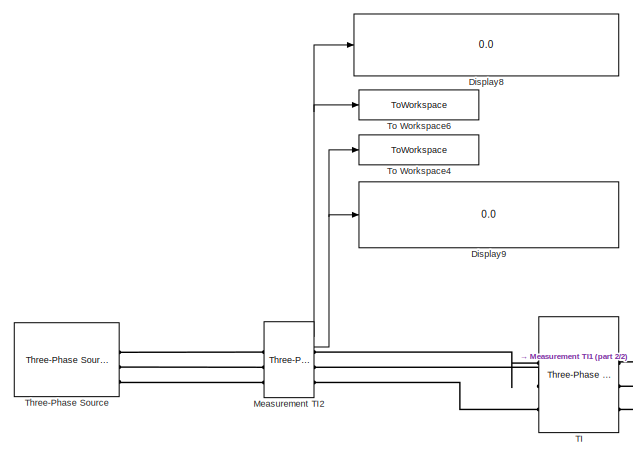
[diagram: root canvas - part 1/2, middle left region]
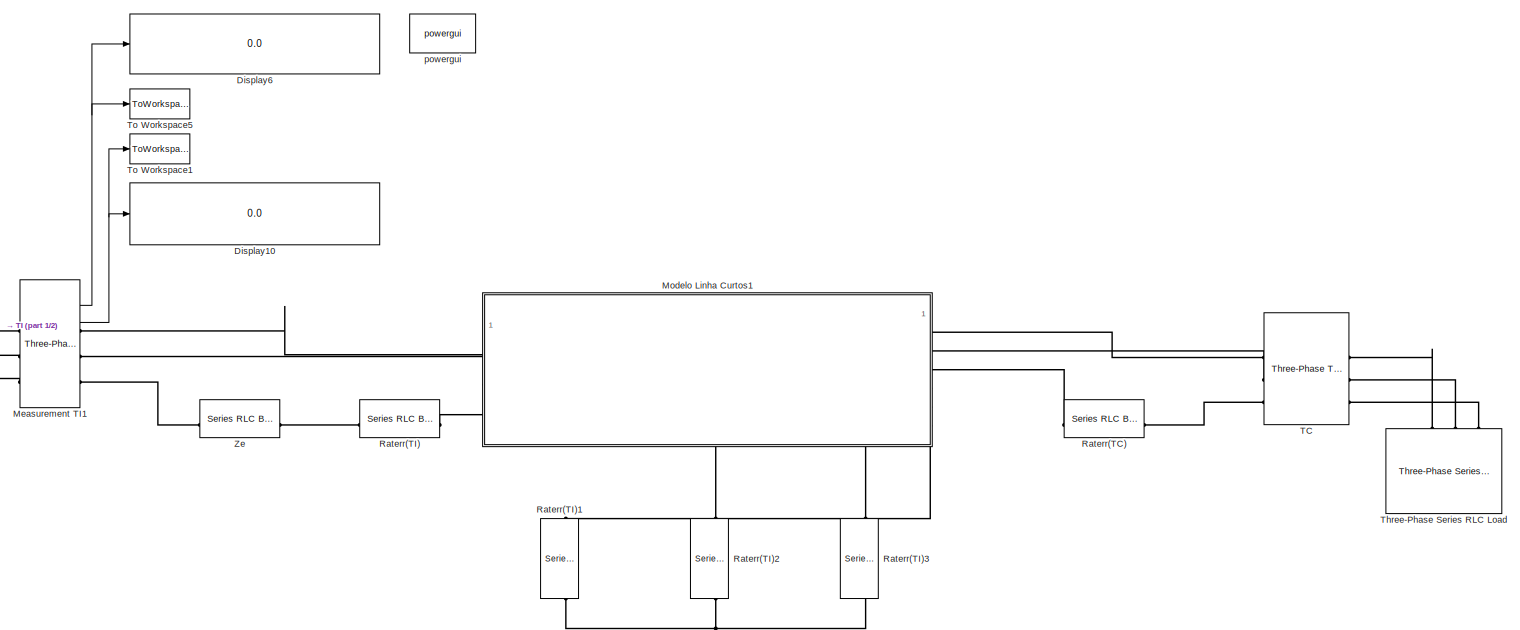
[diagram: root canvas - part 2/2, center side, full height]
MODEL slx_c4ac6f1899d1
KIND model
CONFIG AbsTol = auto
CONFIG EnableMultiTasking = on
CONFIG FixedStep = auto
CONFIG MaxStep = auto
CONFIG MinStep = auto
CONFIG RelTol = 1e-3
CONFIG SampleTimeConstraint = Unconstrained
CONFIG SolverName = ode45
CONFIG StartTime = 0.0
CONFIG StopTime = 0.1
BLOCK [Display] Display10
  Decimation = 1
  Format = long
BLOCK [Display] Display6
  Decimation = 1
  Format = long
BLOCK [Display] Display8
  Decimation = 1
  Format = long
BLOCK [Display] Display9
  Decimation = 1
  Format = long
BLOCK [Reference] Measurement TI1  REF=spsThreePhaseVIMeasurementLib/Three-Phase
V-I Measurement
  SourceBlock = spsThreePhaseVIMeasurementLib/Three-Phase\nV-I Measurement
  SourceType = Three-Phase VI Measurement
BLOCK [Reference] Measurement TI2  REF=spsThreePhaseVIMeasurementLib/Three-Phase
V-I Measurement
  SourceBlock = spsThreePhaseVIMeasurementLib/Three-Phase\nV-I Measurement
  SourceType = Three-Phase VI Measurement
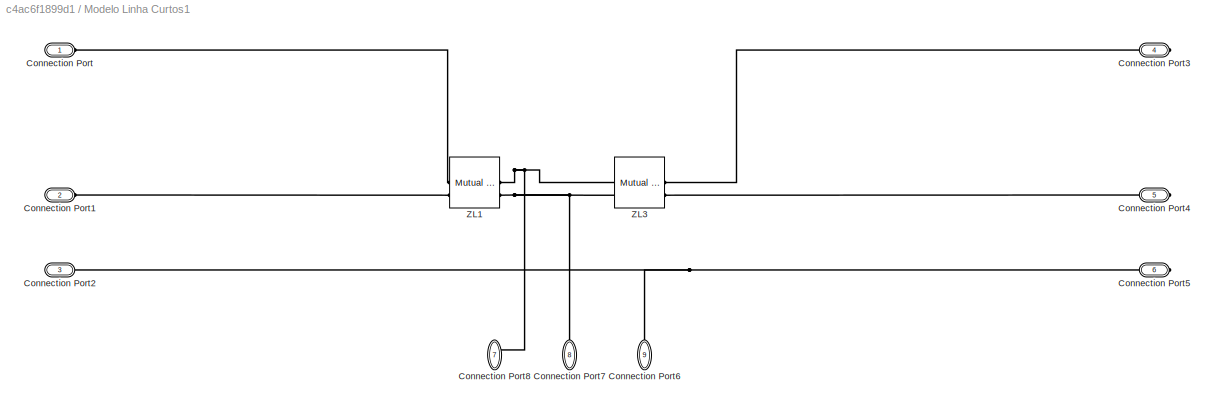
BLOCK [SubSystem] Modelo Linha Curtos1
  PortSchema = {"entries":[{"content":{"sides":[{"content":{"connectorIds":["LConn1","LConn2","LConn3"]},"type":"ConnectorPlacement.EquallySpacedRectSide","uuid":"22bde41c-012f-46d4-8eb8-df128ca7f2aa"},{"content":{"connectorIds":["RConn1","RConn2","RConn3"],"side":"RIGHT"},"type":"ConnectorPlacement.EquallySpacedRectSide","uuid":"b5fef2f1-10fc-4707-9886-cc5270b7437c"},{"content":{"connectorIds":[],"side":"TOP"},...<+451ch>
BLOCK [PMIOPort] Modelo Linha Curtos1/Connection Port
  Side = Left
BLOCK [PMIOPort] Modelo Linha Curtos1/Connection Port1
  Port = 2
  Side = Left
BLOCK [PMIOPort] Modelo Linha Curtos1/Connection Port2
  Port = 3
  Side = Left
BLOCK [PMIOPort] Modelo Linha Curtos1/Connection Port3
  NameLocation = top
  Port = 4
  Side = Right
BLOCK [PMIOPort] Modelo Linha Curtos1/Connection Port4
  NameLocation = top
  Port = 5
  Side = Right
BLOCK [PMIOPort] Modelo Linha Curtos1/Connection Port5
  NameLocation = top
  Port = 6
  Side = Right
BLOCK [PMIOPort] Modelo Linha Curtos1/Connection Port6
  NameLocation = right
  Port = 9
  Side = Right
BLOCK [PMIOPort] Modelo Linha Curtos1/Connection Port7
  NameLocation = right
  Port = 8
  Side = Right
BLOCK [PMIOPort] Modelo Linha Curtos1/Connection Port8
  NameLocation = right
  Port = 7
  Side = Right
BLOCK [Reference] Modelo Linha Curtos1/ZL1  REF=spsMutualInductanceLib/Mutual Inductance
  AttributesFormatString = \n
  SourceBlock = spsMutualInductanceLib/Mutual Inductance
  SourceType = Mutual Inductance
BLOCK [Reference] Modelo Linha Curtos1/ZL3  REF=spsMutualInductanceLib/Mutual Inductance
  AttributesFormatString = \n
  SourceBlock = spsMutualInductanceLib/Mutual Inductance
  SourceType = Mutual Inductance
BLOCK [Reference] Raterr(TC)  REF=spsSeriesRLCBranchLib/Series RLC Branch
  SourceBlock = spsSeriesRLCBranchLib/Series RLC Branch
  SourceType = Series RLC Branch
BLOCK [Reference] Raterr(TI)  REF=spsSeriesRLCBranchLib/Series RLC Branch
  SourceBlock = spsSeriesRLCBranchLib/Series RLC Branch
  SourceType = Series RLC Branch
BLOCK [Reference] Raterr(TI)1  REF=spsSeriesRLCBranchLib/Series RLC Branch
  NameLocation = left
  SourceBlock = spsSeriesRLCBranchLib/Series RLC Branch
  SourceType = Series RLC Branch
BLOCK [Reference] Raterr(TI)2  REF=spsSeriesRLCBranchLib/Series RLC Branch
  NameLocation = left
  SourceBlock = spsSeriesRLCBranchLib/Series RLC Branch
  SourceType = Series RLC Branch
BLOCK [Reference] Raterr(TI)3  REF=spsSeriesRLCBranchLib/Series RLC Branch
  NameLocation = left
  SourceBlock = spsSeriesRLCBranchLib/Series RLC Branch
  SourceType = Series RLC Branch
BLOCK [Reference] TC  REF=spsThreePhaseTransformerTwoWindingsLib/Three-Phase
Transformer
(Two Windings)
  SourceBlock = spsThreePhaseTransformerTwoWindingsLib/Three-Phase\nTransformer\n(Two Windings)
  SourceType = Three-Phase Transformer (Two Windings)
BLOCK [Reference] TI  REF=spsThreePhaseTransformerTwoWindingsLib/Three-Phase
Transformer
(Two Windings)
  SourceBlock = spsThreePhaseTransformerTwoWindingsLib/Three-Phase\nTransformer\n(Two Windings)
  SourceType = Three-Phase Transformer (Two Windings)
BLOCK [Reference] Three-Phase Series RLC Load  REF=spsThreePhaseSeriesRLCLoadLib/Three-Phase
Series RLC Load
  AttributesFormatString = \n
  LibrarySourceBlock = sps_lib/Passives/Three-Phase\nSeries RLC Load
  SourceBlock = spsThreePhaseSeriesRLCLoadLib/Three-Phase\nSeries RLC Load
  SourceType = Three-Phase Series RLC Load
BLOCK [Reference] Three-Phase Source  REF=spsThreePhaseSourceLib/Three-Phase Source
  SourceBlock = spsThreePhaseSourceLib/Three-Phase Source
  SourceType = Three-Phase Source
BLOCK [ToWorkspace] To Workspace1
  MaxDataPoints = 1
  SampleTime = -1
  VariableName = CorrenteT2F
BLOCK [ToWorkspace] To Workspace4
  MaxDataPoints = 1
  NameLocation = right
  SampleTime = -1
  VariableName = CorrenteTrifasico
BLOCK [ToWorkspace] To Workspace5
  MaxDataPoints = 1
  SampleTime = -1
  VariableName = TensaoA
BLOCK [ToWorkspace] To Workspace6
  MaxDataPoints = 1
  SampleTime = -1
  VariableName = TensaoEntradaTri
BLOCK [Reference] Ze  REF=spsSeriesRLCBranchLib/Series RLC Branch
  SourceBlock = spsSeriesRLCBranchLib/Series RLC Branch
  SourceType = Series RLC Branch
BLOCK [Reference] powergui  REF=spspowerguiLib/powergui
  Priority = 1
  SourceBlock = spspowerguiLib/powergui
  SourceType = PSB option menu block
NET Measurement TI1:1 -> Display6:1, To Workspace5:1
NET Measurement TI1:2 -> Display10:1, To Workspace1:1
NET Measurement TI2:1 -> Display8:1, To Workspace6:1
NET Measurement TI2:2 -> Display9:1, To Workspace4:1
PLINE Measurement TI1:LConn1 -- TI:RConn1
PLINE Measurement TI1:LConn2 -- TI:RConn2
PLINE Measurement TI1:LConn3 -- TI:RConn3
PLINE Measurement TI1:RConn1 -- Modelo Linha Curtos1:LConn1
PLINE Measurement TI1:RConn2 -- Modelo Linha Curtos1:LConn2
PLINE Measurement TI1:RConn3 -- Ze:LConn1
PLINE Measurement TI2:LConn1 -- Three-Phase Source:RConn1
PLINE Measurement TI2:LConn2 -- Three-Phase Source:RConn2
PLINE Measurement TI2:LConn3 -- Three-Phase Source:RConn3
PLINE Measurement TI2:RConn1 -- TI:LConn1
PLINE Measurement TI2:RConn2 -- TI:LConn2
PLINE Measurement TI2:RConn3 -- TI:LConn3
PLINE Modelo Linha Curtos1/Connection Port1:RConn1 -- Modelo Linha Curtos1/ZL1:LConn2
PNET net1: Modelo Linha Curtos1/Connection Port2:RConn1 -- Modelo Linha Curtos1/Connection Port5:RConn1 -- Modelo Linha Curtos1/Connection Port6:RConn1
PLINE Modelo Linha Curtos1/Connection Port3:RConn1 -- Modelo Linha Curtos1/ZL3:RConn1
PLINE Modelo Linha Curtos1/Connection Port4:RConn1 -- Modelo Linha Curtos1/ZL3:RConn2
PNET net2: Modelo Linha Curtos1/Connection Port7:RConn1 -- Modelo Linha Curtos1/ZL1:RConn2 -- Modelo Linha Curtos1/ZL3:LConn2
PNET net3: Modelo Linha Curtos1/Connection Port8:RConn1 -- Modelo Linha Curtos1/ZL1:RConn1 -- Modelo Linha Curtos1/ZL3:LConn1
PLINE Modelo Linha Curtos1/Connection Port:RConn1 -- Modelo Linha Curtos1/ZL1:LConn1
PLINE Modelo Linha Curtos1:LConn3 -- Raterr(TI):RConn1
PLINE Modelo Linha Curtos1:RConn1 -- TC:LConn1
PLINE Modelo Linha Curtos1:RConn2 -- TC:LConn2
PLINE Modelo Linha Curtos1:RConn3 -- Raterr(TC):LConn1
PLINE Modelo Linha Curtos1:RConn4 -- Raterr(TI)1:LConn1
PLINE Modelo Linha Curtos1:RConn5 -- Raterr(TI)2:LConn1
PLINE Modelo Linha Curtos1:RConn6 -- Raterr(TI)3:LConn1
PLINE Raterr(TC):RConn1 -- TC:LConn3
PNET net4: Raterr(TI)1:RConn1 -- Raterr(TI)2:RConn1 -- Raterr(TI)3:RConn1
PLINE Raterr(TI):LConn1 -- Ze:RConn1
PLINE TC:RConn1 -- Three-Phase Series RLC Load:LConn1
PLINE TC:RConn2 -- Three-Phase Series RLC Load:LConn2
PLINE TC:RConn3 -- Three-Phase Series RLC Load:LConn3
note: NET lines group one-source signal fan-out (src -> all destinations, sorted); 1:1 wires keep LINE; PNET lines group multi-terminal physical nets as a canonical sorted terminal list (undirected conserving connections); 2-terminal nets keep the pairwise PLINE form
